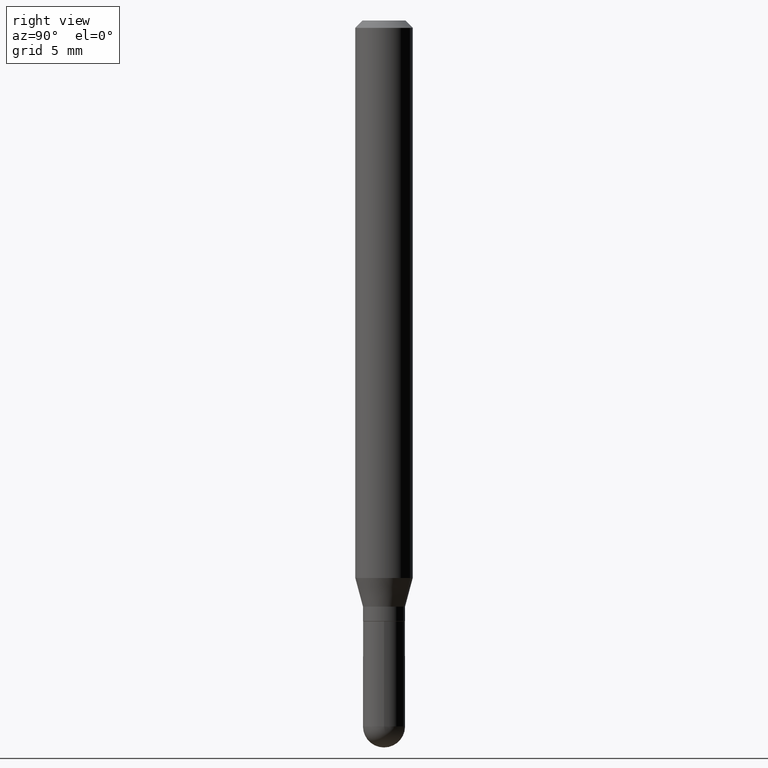
[diagram: clean part render]
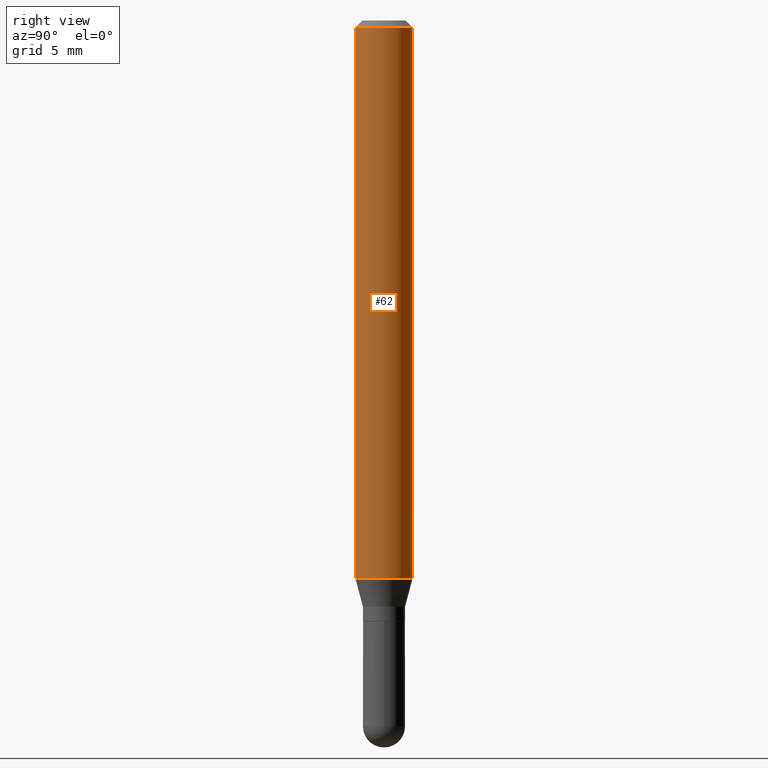
[diagram: same view with one face highlighted and labeled with its STEP entity id]
A machine part, right view. The second image highlights one B-rep face of the part: STEP entity #62.
In plain terms, the highlighted cylindrical surface (edge-blend (fillet) strip) has radius 1.4999 mm, axis along (-0, 0, 1).
Its self-contained STEP definition (entity closure, byte-faithful):
#2 = VERTEX_POINT ( 'NONE', #510 ) ;
#27 = CIRCLE ( 'NONE', #112, 0.05904999999999999832 ) ;
#33 = LINE ( 'NONE', #354, #40 ) ;
#40 = VECTOR ( 'NONE', #505, 39.37007874015748143 ) ;
#62 = ADVANCED_FACE ( 'NONE', ( #218 ), #380, .T. ) ;
#68 = CARTESIAN_POINT ( 'NONE',  ( 4.195754854663673989E-16, 0.05904999999999994975, -0.01500000000000023016 ) ) ;
#73 = DIRECTION ( 'NONE',  ( -6.982962677686265922E-15, -1.000000000000000000, 3.505890868245046092E-15 ) ) ;
#86 = CARTESIAN_POINT ( 'NONE',  ( -4.123439461173459788E-16, -0.05905000000000400207, -1.147320199780789585 ) ) ;
#95 = CARTESIAN_POINT ( 'NONE',  ( 2.805741960223202757E-29, -4.005838187094525059E-15, -1.147320199780789807 ) ) ;
#112 = AXIS2_PLACEMENT_3D ( 'NONE', #469, #427, #73 ) ;
#124 = VECTOR ( 'NONE', #324, 39.37007874015748143 ) ;
#147 = EDGE_CURVE ( 'NONE', #233, #2, #394, .T. ) ;
#165 = DIRECTION ( 'NONE',  ( -6.982962677686265922E-15, -1.000000000000000000, 3.491473598965564778E-15 ) ) ;
#167 = LINE ( 'NONE', #387, #124 ) ;
#183 = VERTEX_POINT ( 'NONE', #428 ) ;
#214 = AXIS2_PLACEMENT_3D ( 'NONE', #95, #254, #443 ) ;
#218 = FACE_OUTER_BOUND ( 'NONE', #356, .T. ) ;
#223 = CARTESIAN_POINT ( 'NONE',  ( 0.000000000000000000, 0.000000000000000000, 0.000000000000000000 ) ) ;
#226 = ORIENTED_EDGE ( 'NONE', *, *, #512, .T. ) ;
#233 = VERTEX_POINT ( 'NONE', #86 ) ;
#254 = DIRECTION ( 'NONE',  ( -2.445474210912764340E-29, 3.491473598965564778E-15, 1.000000000000000000 ) ) ;
#291 = DIRECTION ( 'NONE',  ( -2.445474210912764340E-29, 3.491473598965564778E-15, 1.000000000000000000 ) ) ;
#316 = ORIENTED_EDGE ( 'NONE', *, *, #483, .F. ) ;
#324 = DIRECTION ( 'NONE',  ( -2.445474210912764340E-29, 3.491473598965565172E-15, 1.000000000000000000 ) ) ;
#331 = AXIS2_PLACEMENT_3D ( 'NONE', #223, #291, #165 ) ;
#354 = CARTESIAN_POINT ( 'NONE',  ( 4.195754854663390985E-16, 0.05904999999999999832, -2.061715160189165873E-16 ) ) ;
#356 = EDGE_LOOP ( 'NONE', ( #395, #226, #374, #316 ) ) ;
#374 = ORIENTED_EDGE ( 'NONE', *, *, #476, .F. ) ;
#380 = CYLINDRICAL_SURFACE ( 'NONE', #331, 0.05904999999999999832 ) ;
#387 = CARTESIAN_POINT ( 'NONE',  ( -4.123439461173739834E-16, -0.05904999999999999832, 2.061715160189165873E-16 ) ) ;
#394 = CIRCLE ( 'NONE', #214, 0.05904999999999999832 ) ;
#395 = ORIENTED_EDGE ( 'NONE', *, *, #147, .T. ) ;
#427 = DIRECTION ( 'NONE',  ( -2.445474210912764340E-29, 3.491473598965564778E-15, 1.000000000000000000 ) ) ;
#428 = CARTESIAN_POINT ( 'NONE',  ( -4.123439461173736383E-16, -0.05905000000000005383, -0.01499999999999981730 ) ) ;
#443 = DIRECTION ( 'NONE',  ( -6.982962677686265922E-15, -1.000000000000000000, 4.626330217890369336E-15 ) ) ;
#469 = CARTESIAN_POINT ( 'NONE',  ( 3.668211316369151799E-31, -5.237210398448355894E-17, -0.01500000000000002373 ) ) ;
#476 = EDGE_CURVE ( 'NONE', #183, #502, #27, .T. ) ;
#483 = EDGE_CURVE ( 'NONE', #233, #183, #167, .T. ) ;
#502 = VERTEX_POINT ( 'NONE', #68 ) ;
#505 = DIRECTION ( 'NONE',  ( -2.445474210912764340E-29, 3.491473598965565172E-15, 1.000000000000000000 ) ) ;
#510 = CARTESIAN_POINT ( 'NONE',  ( 4.195754854663670538E-16, 0.05904999999999599458, -1.147320199780790029 ) ) ;
#512 = EDGE_CURVE ( 'NONE', #2, #502, #33, .T. ) ;